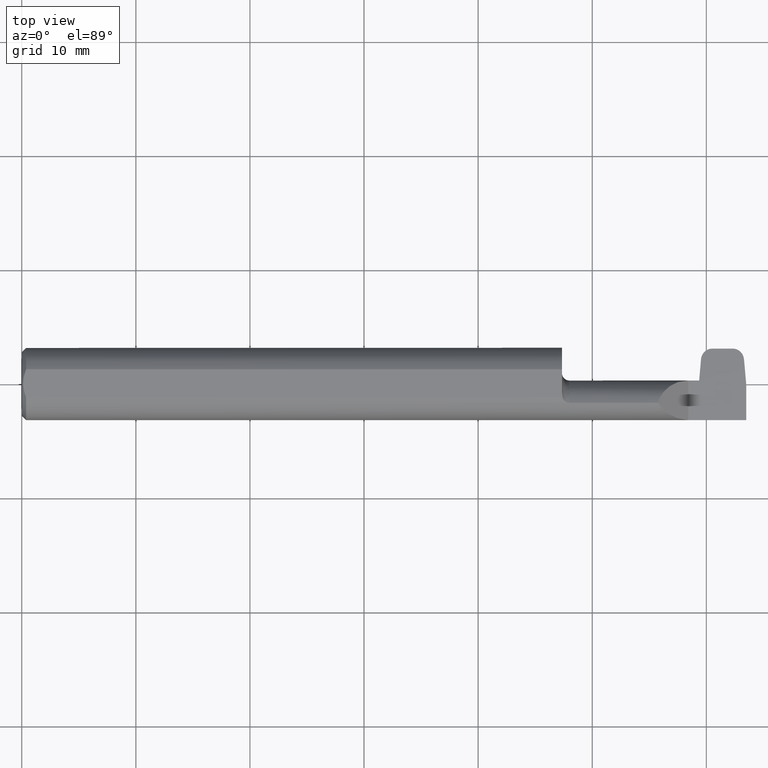
[diagram: clean part render]
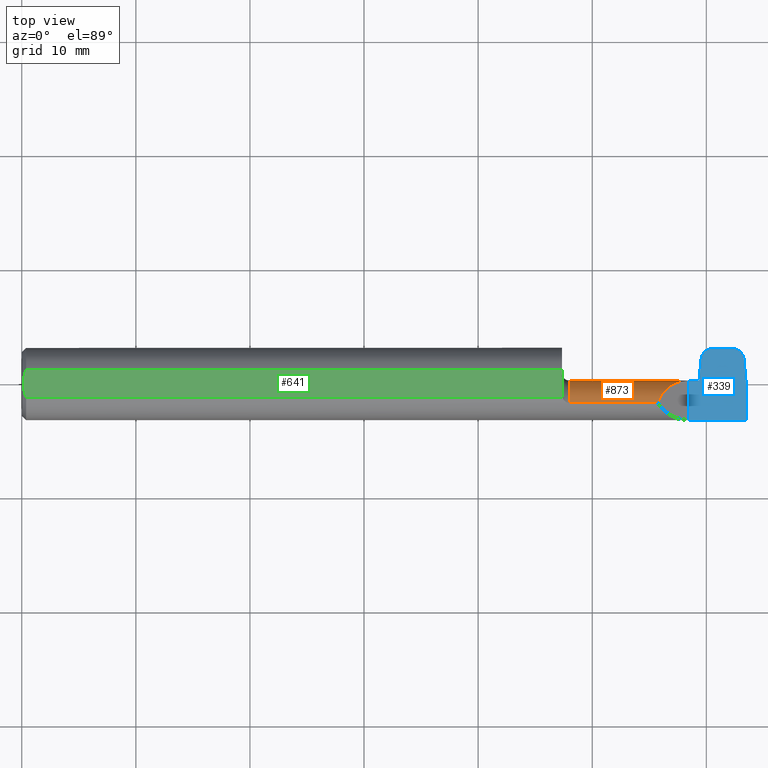
[diagram: same view with three faces highlighted in distinct colors, each labeled with its STEP entity id]
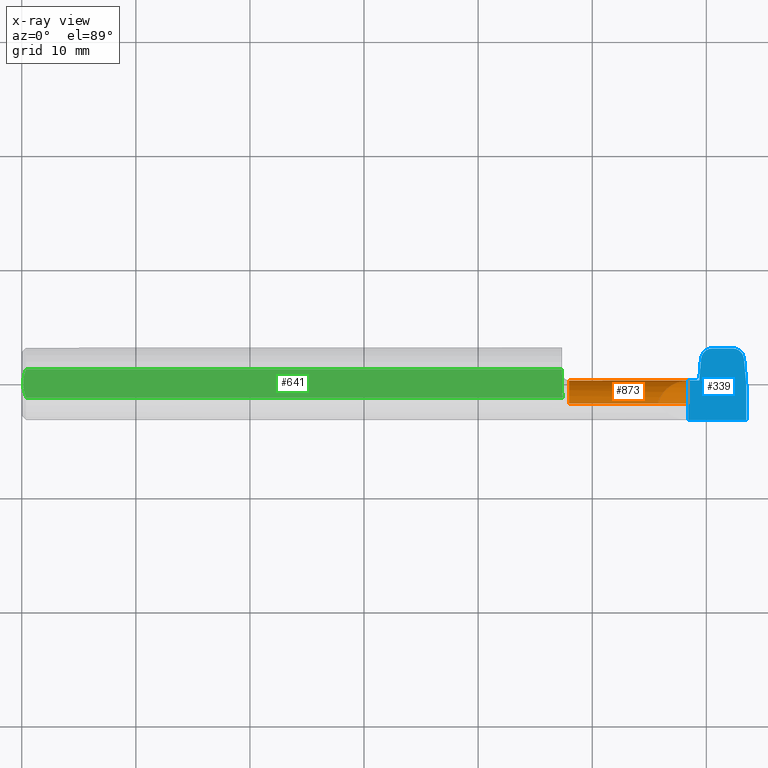
[diagram: x-ray of the same camera — body ghosted, the three highlighted faces saturated]
A machine part, top view with three faces highlighted in distinct colors.
The next image is the same camera in x-ray (body ghosted, the three faces saturated) — at least one of them is partly hidden behind the body in this view.
Their STEP definitions:

[orange] entity #873 — the highlighted cylindrical surface (edge-blend (fillet) strip) has radius 2.794 mm, axis along (-1, -0, -0).
#4 = EDGE_CURVE ( 'NONE', #500, #217, #409, .T. ) ;
#9 = CARTESIAN_POINT ( 'NONE',  ( 2.194839212967228281, -0.06674575881451201564, 0.1055107870327720992 ) ) ;
#11 = DIRECTION ( 'NONE',  ( 0.000000000000000000, 0.000000000000000000, -1.000000000000000000 ) ) ;
#30 = CARTESIAN_POINT ( 'NONE',  ( 2.335337347841493827, 0.01215000000000003751, -0.008981717422824315664 ) ) ;
#44 = EDGE_CURVE ( 'NONE', #577, #161, #95, .T. ) ;
#48 = DIRECTION ( 'NONE',  ( -1.000000000000000000, -0.000000000000000000, -0.000000000000000000 ) ) ;
#82 = VERTEX_POINT ( 'NONE', #239 ) ;
#86 = CARTESIAN_POINT ( 'NONE',  ( 2.300000000000000266, -0.09784999999999999254, 0.000000000000000000 ) ) ;
#93 = CARTESIAN_POINT ( 'NONE',  ( 2.334242751836523411, 0.01105540399502986069, -0.01789648648597845504 ) ) ;
#95 = LINE ( 'NONE', #572, #753 ) ;
#110 = CIRCLE ( 'NONE', #712, 0.1100000000000000422 ) ;
#121 = LINE ( 'NONE', #126, #453 ) ;
#123 = CARTESIAN_POINT ( 'NONE',  ( 2.100500000000000256, -0.06674575881451197401, 0.1055107870327721270 ) ) ;
#126 = CARTESIAN_POINT ( 'NONE',  ( 2.100500000000000256, -0.06674575881451197401, -0.1055107870327721270 ) ) ;
#127 = LINE ( 'NONE', #123, #554 ) ;
#128 = EDGE_CURVE ( 'NONE', #236, #165, #365, .T. ) ;
#152 = EDGE_CURVE ( 'NONE', #217, #82, #127, .T. ) ;
#161 = VERTEX_POINT ( 'NONE', #861 ) ;
#164 = DIRECTION ( 'NONE',  ( -1.000000000000000000, -0.000000000000000000, -0.000000000000000000 ) ) ;
#165 = VERTEX_POINT ( 'NONE', #336 ) ;
#174 = VECTOR ( 'NONE', #385, 39.37007874015748143 ) ;
#190 = ORIENTED_EDGE ( 'NONE', *, *, #4, .T. ) ;
#200 = ORIENTED_EDGE ( 'NONE', *, *, #386, .F. ) ;
#209 = CARTESIAN_POINT ( 'NONE',  ( 2.249507022518907995, 0.01198878289334361948, 0.05084297748109223303 ) ) ;
#212 = CARTESIAN_POINT ( 'NONE',  ( 1.889000000000000012, -0.09784999999999999254, 0.000000000000000000 ) ) ;
#217 = VERTEX_POINT ( 'NONE', #790 ) ;
#236 = VERTEX_POINT ( 'NONE', #506 ) ;
#239 = CARTESIAN_POINT ( 'NONE',  ( 2.194839212967228281, -0.06674575881451201564, 0.1055107870327720992 ) ) ;
#257 = CARTESIAN_POINT ( 'NONE',  ( 2.333172693961768740, 0.008882529890359628158, -0.02661140851596358395 ) ) ;
#266 = CYLINDRICAL_SURFACE ( 'NONE', #713, 0.1100000000000000283 ) ;
#270 = DIRECTION ( 'NONE',  ( -1.000000000000000000, -0.000000000000000000, -0.000000000000000000 ) ) ;
#289 = EDGE_CURVE ( 'NONE', #522, #82, #492, .T. ) ;
#313 = EDGE_CURVE ( 'NONE', #366, #577, #110, .T. ) ;
#314 = DIRECTION ( 'NONE',  ( 1.000000000000000000, -0.000000000000000000, -0.000000000000000000 ) ) ;
#320 = DIRECTION ( 'NONE',  ( 0.000000000000000000, 0.000000000000000000, 1.000000000000000000 ) ) ;
#321 = ORIENTED_EDGE ( 'NONE', *, *, #44, .F. ) ;
#336 = CARTESIAN_POINT ( 'NONE',  ( 2.336440164071409420, 0.01215000000000004965, 0.000000000000000000 ) ) ;
#343 = CARTESIAN_POINT ( 'NONE',  ( 1.864000000000000101, -0.09784999999999999254, 0.000000000000000000 ) ) ;
#365 = LINE ( 'NONE', #370, #626 ) ;
#366 = VERTEX_POINT ( 'NONE', #795 ) ;
#370 = CARTESIAN_POINT ( 'NONE',  ( 1.864000000000000101, 0.01215000000000003230, -2.465075339897404302E-17 ) ) ;
#385 = DIRECTION ( 'NONE',  ( -1.000000000000000000, -0.000000000000000000, -0.000000000000000000 ) ) ;
#386 = EDGE_CURVE ( 'NONE', #161, #415, #530, .T. ) ;
#409 = CIRCLE ( 'NONE', #669, 0.1100000000000000283 ) ;
#410 = ORIENTED_EDGE ( 'NONE', *, *, #735, .T. ) ;
#415 = VERTEX_POINT ( 'NONE', #257 ) ;
#445 = CARTESIAN_POINT ( 'NONE',  ( 2.349311322083690090, -0.09784999999999999254, 0.000000000000000000 ) ) ;
#448 = DIRECTION ( 'NONE',  ( 1.000000000000000000, 0.000000000000000000, 0.000000000000000000 ) ) ;
#449 = CARTESIAN_POINT ( 'NONE',  ( 1.864000000000000101, 0.008882529890359655914, -0.02661140851596339313 ) ) ;
#453 = VECTOR ( 'NONE', #48, 39.37007874015748143 ) ;
#463 = ORIENTED_EDGE ( 'NONE', *, *, #289, .F. ) ;
#472 = DIRECTION ( 'NONE',  ( 0.000000000000000000, 0.000000000000000000, 1.000000000000000000 ) ) ;
#478 = CARTESIAN_POINT ( 'NONE',  ( 2.209116973875248302, -0.01831320643403844955, 0.09123302612475124584 ) ) ;
#480 = CARTESIAN_POINT ( 'NONE',  ( 1.889000000000000012, -0.06674575881451197401, -0.1055107870327721270 ) ) ;
#492 =( BOUNDED_CURVE ( )  B_SPLINE_CURVE ( 3, ( #819, #209, #478, #9 ),
 .UNSPECIFIED., .F., .T. ) 
 B_SPLINE_CURVE_WITH_KNOTS ( ( 4, 4 ),
 ( 4.715570803935303701, 5.996508910626888067 ),
 .UNSPECIFIED. ) 
 CURVE ( )  GEOMETRIC_REPRESENTATION_ITEM ( )  RATIONAL_B_SPLINE_CURVE ( ( 1.000000000000000000, 0.8678770354264943032, 0.8678770354264943032, 1.000000000000000000 ) ) 
 REPRESENTATION_ITEM ( '' )  );
#498 = CARTESIAN_POINT ( 'NONE',  ( 2.336440164071409420, 0.01215000000000004965, 0.000000000000000000 ) ) ;
#500 = VERTEX_POINT ( 'NONE', #480 ) ;
#506 = CARTESIAN_POINT ( 'NONE',  ( 2.300000000000000266, 0.01215000000000003230, -2.465075339897404302E-17 ) ) ;
#508 = ORIENTED_EDGE ( 'NONE', *, *, #152, .T. ) ;
#522 = VERTEX_POINT ( 'NONE', #551 ) ;
#523 =( BOUNDED_CURVE ( )  B_SPLINE_CURVE ( 3, ( #695, #93, #30, #498 ),
 .UNSPECIFIED., .F., .T. ) 
 B_SPLINE_CURVE_WITH_KNOTS ( ( 4, 4 ),
 ( 1.326450231515704070, 1.570796326794911879 ),
 .UNSPECIFIED. ) 
 CURVE ( )  GEOMETRIC_REPRESENTATION_ITEM ( )  RATIONAL_B_SPLINE_CURVE ( ( 1.000000000000000000, 0.9950307677608813961, 0.9950307677608813961, 1.000000000000000000 ) ) 
 REPRESENTATION_ITEM ( '' )  );
#530 = LINE ( 'NONE', #449, #174 ) ;
#550 = EDGE_CURVE ( 'NONE', #522, #236, #845, .T. ) ;
#551 = CARTESIAN_POINT ( 'NONE',  ( 2.300000000000000266, 0.01214944318040891459, 0.0003500000000001822508 ) ) ;
#554 = VECTOR ( 'NONE', #448, 39.37007874015748143 ) ;
#572 = CARTESIAN_POINT ( 'NONE',  ( 2.349311322083690090, 0.008882529890359631627, -0.02661140851596358395 ) ) ;
#577 = VERTEX_POINT ( 'NONE', #745 ) ;
#618 = DIRECTION ( 'NONE',  ( 1.000000000000000000, 0.000000000000000000, 0.000000000000000000 ) ) ;
#623 = ORIENTED_EDGE ( 'NONE', *, *, #550, .T. ) ;
#626 = VECTOR ( 'NONE', #643, 39.37007874015748143 ) ;
#643 = DIRECTION ( 'NONE',  ( 1.000000000000000000, 0.000000000000000000, 0.000000000000000000 ) ) ;
#668 = FACE_OUTER_BOUND ( 'NONE', #825, .T. ) ;
#669 = AXIS2_PLACEMENT_3D ( 'NONE', #212, #618, #11 ) ;
#677 = DIRECTION ( 'NONE',  ( 0.000000000000000000, 0.000000000000000000, 1.000000000000000000 ) ) ;
#685 = EDGE_CURVE ( 'NONE', #415, #165, #523, .T. ) ;
#695 = CARTESIAN_POINT ( 'NONE',  ( 2.333172693961768740, 0.008882529890359628158, -0.02661140851596358395 ) ) ;
#712 = AXIS2_PLACEMENT_3D ( 'NONE', #445, #314, #320 ) ;
#713 = AXIS2_PLACEMENT_3D ( 'NONE', #343, #270, #677 ) ;
#717 = ORIENTED_EDGE ( 'NONE', *, *, #128, .T. ) ;
#735 = EDGE_CURVE ( 'NONE', #366, #500, #121, .T. ) ;
#742 = ORIENTED_EDGE ( 'NONE', *, *, #313, .F. ) ;
#745 = CARTESIAN_POINT ( 'NONE',  ( 2.349311322083690090, 0.008882529890359631627, -0.02661140851596358395 ) ) ;
#749 = DIRECTION ( 'NONE',  ( -1.000000000000000000, -0.000000000000000000, -0.000000000000000000 ) ) ;
#753 = VECTOR ( 'NONE', #164, 39.37007874015748143 ) ;
#755 = AXIS2_PLACEMENT_3D ( 'NONE', #86, #749, #472 ) ;
#790 = CARTESIAN_POINT ( 'NONE',  ( 1.889000000000000012, -0.06674575881451197401, 0.1055107870327721270 ) ) ;
#795 = CARTESIAN_POINT ( 'NONE',  ( 2.349311322083690090, -0.06674575881451196013, -0.1055107870327721409 ) ) ;
#817 = ORIENTED_EDGE ( 'NONE', *, *, #685, .F. ) ;
#819 = CARTESIAN_POINT ( 'NONE',  ( 2.300000000000000266, 0.01214944318040891459, 0.0003500000000001822508 ) ) ;
#825 = EDGE_LOOP ( 'NONE', ( #200, #321, #742, #410, #190, #508, #463, #623, #717, #817 ) ) ;
#845 = CIRCLE ( 'NONE', #755, 0.1100000000000000283 ) ;
#861 = CARTESIAN_POINT ( 'NONE',  ( 2.340434248793042737, 0.008882529890359631627, -0.02661140851596358395 ) ) ;
#873 = ADVANCED_FACE ( 'NONE', ( #668 ), #266, .T. ) ;

[blue] entity #339 — the highlighted planar face has unit normal (-0, 0, -1).
#16 =( BOUNDED_CURVE ( )  B_SPLINE_CURVE ( 3, ( #278, #763, #698, #836 ),
 .UNSPECIFIED., .F., .F. ) 
 B_SPLINE_CURVE_WITH_KNOTS ( ( 4, 4 ),
 ( 1.960722919233723216, 3.411297973623238722 ),
 .UNSPECIFIED. ) 
 CURVE ( )  GEOMETRIC_REPRESENTATION_ITEM ( )  RATIONAL_B_SPLINE_CURVE ( ( 1.000000000000000000, 0.8322058143701926980, 0.8322058143701926980, 1.000000000000000000 ) ) 
 REPRESENTATION_ITEM ( '' )  );
#58 = DIRECTION ( 'NONE',  ( 1.000000000000000000, 0.000000000000000000, 0.000000000000000000 ) ) ;
#63 = CARTESIAN_POINT ( 'NONE',  ( 2.300000000000000266, 0.1250000000000000000, -2.465075339897404302E-17 ) ) ;
#69 = LINE ( 'NONE', #156, #94 ) ;
#72 = CARTESIAN_POINT ( 'NONE',  ( 2.300000000000000266, -0.1248500000000000026, -2.465075339897404302E-17 ) ) ;
#88 = EDGE_CURVE ( 'NONE', #202, #813, #761, .T. ) ;
#94 = VECTOR ( 'NONE', #532, 39.37007874015748143 ) ;
#128 = EDGE_CURVE ( 'NONE', #236, #165, #365, .T. ) ;
#129 = LINE ( 'NONE', #590, #299 ) ;
#135 = ORIENTED_EDGE ( 'NONE', *, *, #561, .T. ) ;
#156 = CARTESIAN_POINT ( 'NONE',  ( 2.500000000000000000, 0.1250000000000000000, -2.465075339897404302E-17 ) ) ;
#165 = VERTEX_POINT ( 'NONE', #336 ) ;
#170 = EDGE_CURVE ( 'NONE', #165, #504, #319, .T. ) ;
#184 = CARTESIAN_POINT ( 'NONE',  ( 2.300000000000000266, 0.1250000000000000000, -2.465075339897404302E-17 ) ) ;
#189 = DIRECTION ( 'NONE',  ( -1.000000000000000000, 0.000000000000000000, 0.000000000000000000 ) ) ;
#191 = VECTOR ( 'NONE', #58, 39.37007874015748143 ) ;
#202 = VERTEX_POINT ( 'NONE', #784 ) ;
#215 = EDGE_CURVE ( 'NONE', #504, #549, #515, .T. ) ;
#216 = LINE ( 'NONE', #407, #497 ) ;
#236 = VERTEX_POINT ( 'NONE', #506 ) ;
#248 = CARTESIAN_POINT ( 'NONE',  ( 2.500000000000000000, -0.1248500000000000026, -2.465075339897404302E-17 ) ) ;
#276 = VERTEX_POINT ( 'NONE', #459 ) ;
#278 = CARTESIAN_POINT ( 'NONE',  ( 2.492302251767204435, 0.08513566491434629291, 0.000000000000000000 ) ) ;
#285 = VECTOR ( 'NONE', #558, 39.37007874015748143 ) ;
#292 = CARTESIAN_POINT ( 'NONE',  ( 2.345766828185320119, 0.1073242063295297422, -1.707404996040164512E-17 ) ) ;
#298 = EDGE_CURVE ( 'NONE', #662, #202, #16, .T. ) ;
#299 = VECTOR ( 'NONE', #461, 39.37007874015748143 ) ;
#319 = LINE ( 'NONE', #725, #191 ) ;
#326 = EDGE_CURVE ( 'NONE', #738, #533, #129, .T. ) ;
#327 = DIRECTION ( 'NONE',  ( -0.000000000000000000, 1.000000000000000000, -0.000000000000000000 ) ) ;
#336 = CARTESIAN_POINT ( 'NONE',  ( 2.336440164071409420, 0.01215000000000004965, 0.000000000000000000 ) ) ;
#339 = ADVANCED_FACE ( 'NONE', ( #516 ), #585, .F. ) ;
#365 = LINE ( 'NONE', #370, #626 ) ;
#370 = CARTESIAN_POINT ( 'NONE',  ( 1.864000000000000101, 0.01215000000000003230, -2.465075339897404302E-17 ) ) ;
#387 = ORIENTED_EDGE ( 'NONE', *, *, #88, .T. ) ;
#407 = CARTESIAN_POINT ( 'NONE',  ( 2.489063917059260334, 0.1221499999999998004, 0.000000000000000000 ) ) ;
#417 = CARTESIAN_POINT ( 'NONE',  ( 2.382666486481432422, 0.1221499999999997865, -2.465075339897404302E-17 ) ) ;
#423 =( BOUNDED_CURVE ( )  B_SPLINE_CURVE ( 3, ( #417, #633, #292, #837 ),
 .UNSPECIFIED., .F., .T. ) 
 B_SPLINE_CURVE_WITH_KNOTS ( ( 4, 4 ),
 ( 6.013479987146147288, 7.464055041535657686 ),
 .UNSPECIFIED. ) 
 CURVE ( )  GEOMETRIC_REPRESENTATION_ITEM ( )  RATIONAL_B_SPLINE_CURVE ( ( 1.000000000000000000, 0.8322058143701936972, 0.8322058143701936972, 1.000000000000000000 ) ) 
 REPRESENTATION_ITEM ( '' )  );
#430 = CARTESIAN_POINT ( 'NONE',  ( 2.492302251767204435, 0.08513566491434629291, 0.000000000000000000 ) ) ;
#431 = EDGE_CURVE ( 'NONE', #533, #236, #665, .T. ) ;
#436 = ORIENTED_EDGE ( 'NONE', *, *, #496, .F. ) ;
#459 = CARTESIAN_POINT ( 'NONE',  ( 2.500000000000000000, -0.002850000000000199596, 0.000000000000000000 ) ) ;
#461 = DIRECTION ( 'NONE',  ( -1.000000000000000000, -0.000000000000000000, -0.000000000000000000 ) ) ;
#467 = VECTOR ( 'NONE', #327, 39.37007874015748143 ) ;
#473 = ORIENTED_EDGE ( 'NONE', *, *, #215, .F. ) ;
#476 = ORIENTED_EDGE ( 'NONE', *, *, #170, .F. ) ;
#496 = EDGE_CURVE ( 'NONE', #662, #276, #216, .T. ) ;
#497 = VECTOR ( 'NONE', #824, 39.37007874015748143 ) ;
#504 = VERTEX_POINT ( 'NONE', #622 ) ;
#506 = CARTESIAN_POINT ( 'NONE',  ( 2.300000000000000266, 0.01215000000000003230, -2.465075339897404302E-17 ) ) ;
#515 = LINE ( 'NONE', #648, #598 ) ;
#516 = FACE_OUTER_BOUND ( 'NONE', #536, .T. ) ;
#517 = ORIENTED_EDGE ( 'NONE', *, *, #619, .T. ) ;
#532 = DIRECTION ( 'NONE',  ( -0.000000000000000000, 1.000000000000000000, -0.000000000000000000 ) ) ;
#533 = VERTEX_POINT ( 'NONE', #72 ) ;
#536 = EDGE_LOOP ( 'NONE', ( #387, #517, #473, #476, #696, #600, #879, #135, #436, #627 ) ) ;
#549 = VERTEX_POINT ( 'NONE', #683 ) ;
#558 = DIRECTION ( 'NONE',  ( -1.000000000000000000, 8.303569413842311969E-16, 0.000000000000000000 ) ) ;
#561 = EDGE_CURVE ( 'NONE', #738, #276, #69, .T. ) ;
#585 = PLANE ( 'NONE',  #771 ) ;
#590 = CARTESIAN_POINT ( 'NONE',  ( 2.500000000000000000, -0.1248500000000000026, -2.465075339897404302E-17 ) ) ;
#598 = VECTOR ( 'NONE', #868, 39.37007874015748854 ) ;
#600 = ORIENTED_EDGE ( 'NONE', *, *, #431, .F. ) ;
#619 = EDGE_CURVE ( 'NONE', #813, #549, #423, .T. ) ;
#622 = CARTESIAN_POINT ( 'NONE',  ( 2.337440164071409310, 0.01215000000000004965, 0.000000000000000000 ) ) ;
#626 = VECTOR ( 'NONE', #643, 39.37007874015748143 ) ;
#627 = ORIENTED_EDGE ( 'NONE', *, *, #298, .T. ) ;
#633 = CARTESIAN_POINT ( 'NONE',  ( 2.361324239368718825, 0.1221499999999996061, -1.707404996040164512E-17 ) ) ;
#643 = DIRECTION ( 'NONE',  ( 1.000000000000000000, 0.000000000000000000, 0.000000000000000000 ) ) ;
#648 = CARTESIAN_POINT ( 'NONE',  ( 2.337440164071409310, 0.01215000000000004965, 0.000000000000000000 ) ) ;
#662 = VERTEX_POINT ( 'NONE', #430 ) ;
#665 = LINE ( 'NONE', #63, #467 ) ;
#683 = CARTESIAN_POINT ( 'NONE',  ( 2.343825582351315884, 0.08513566491434633454, 0.000000000000000000 ) ) ;
#696 = ORIENTED_EDGE ( 'NONE', *, *, #128, .F. ) ;
#698 = CARTESIAN_POINT ( 'NONE',  ( 2.474803594749801938, 0.1221499999999996616, -1.707404996040164203E-17 ) ) ;
#725 = CARTESIAN_POINT ( 'NONE',  ( 2.336440164071409420, 0.01215000000000004965, 0.000000000000000000 ) ) ;
#737 = DIRECTION ( 'NONE',  ( -0.000000000000000000, 0.000000000000000000, -1.000000000000000000 ) ) ;
#738 = VERTEX_POINT ( 'NONE', #248 ) ;
#761 = LINE ( 'NONE', #848, #285 ) ;
#763 = CARTESIAN_POINT ( 'NONE',  ( 2.490361005933200200, 0.1073242063295298254, -1.707404996040164203E-17 ) ) ;
#771 = AXIS2_PLACEMENT_3D ( 'NONE', #184, #737, #189 ) ;
#784 = CARTESIAN_POINT ( 'NONE',  ( 2.453461347637087897, 0.1221499999999997310, -2.465075339897404302E-17 ) ) ;
#799 = CARTESIAN_POINT ( 'NONE',  ( 2.382666486481432422, 0.1221499999999997865, -2.465075339897404302E-17 ) ) ;
#813 = VERTEX_POINT ( 'NONE', #799 ) ;
#824 = DIRECTION ( 'NONE',  ( 0.08715574274765255924, -0.9961946980917459893, 0.000000000000000000 ) ) ;
#836 = CARTESIAN_POINT ( 'NONE',  ( 2.453461347637087897, 0.1221499999999997310, -2.465075339897404302E-17 ) ) ;
#837 = CARTESIAN_POINT ( 'NONE',  ( 2.343825582351315884, 0.08513566491434633454, 0.000000000000000000 ) ) ;
#848 = CARTESIAN_POINT ( 'NONE',  ( 2.300000000000000266, 0.1221499999999998559, -2.465075339897404302E-17 ) ) ;
#868 = DIRECTION ( 'NONE',  ( 0.08715574274765251761, 0.9961946980917459893, 0.000000000000000000 ) ) ;
#879 = ORIENTED_EDGE ( 'NONE', *, *, #326, .F. ) ;

[green] entity #641 — the highlighted planar face has unit normal (-0, 0, -1).
#2 = EDGE_CURVE ( 'NONE', #185, #756, #686, .T. ) ;
#8 = VERTEX_POINT ( 'NONE', #281 ) ;
#14 = LINE ( 'NONE', #146, #286 ) ;
#47 = VERTEX_POINT ( 'NONE', #157 ) ;
#53 = CARTESIAN_POINT ( 'NONE',  ( 0.004999999999933147331, 5.639788019834102201E-15, 0.1148500000000000076 ) ) ;
#56 = VERTEX_POINT ( 'NONE', #352 ) ;
#67 = VECTOR ( 'NONE', #699, 39.37007874015748143 ) ;
#104 = CARTESIAN_POINT ( 'NONE',  ( 0.004999999999999684384, 0.008366382319371040363, 0.1148500000000000076 ) ) ;
#108 = CARTESIAN_POINT ( 'NONE',  ( 0.000000000000000000, 0.1000000000000000056, 0.1148500000000000076 ) ) ;
#109 = CARTESIAN_POINT ( 'NONE',  ( 0.004999999999933147331, 5.639788019834102201E-15, 0.1148500000000000076 ) ) ;
#122 = EDGE_CURVE ( 'NONE', #185, #8, #716, .T. ) ;
#130 = B_SPLINE_CURVE_WITH_KNOTS ( 'NONE', 3,
 ( #53, #519, #379, #731, #525, #789 ),
 .UNSPECIFIED., .F., .F.,
 ( 4, 2, 4 ),
 ( 0.004071982807388159833, 0.004705731387952724089, 0.005339479968517289211 ),
 .UNSPECIFIED. ) ;
#132 = CARTESIAN_POINT ( 'NONE',  ( 1.864000000000000101, -0.03432117512376132301, 0.1148500000000000076 ) ) ;
#146 = CARTESIAN_POINT ( 'NONE',  ( 2.500000000000000000, -0.04895916665957456698, 0.1148500000000000076 ) ) ;
#153 = EDGE_LOOP ( 'NONE', ( #405, #331, #433, #491, #206, #265 ) ) ;
#157 = CARTESIAN_POINT ( 'NONE',  ( 0.01499999999999914770, -0.04895916665957456698, 0.1148500000000000076 ) ) ;
#166 = CARTESIAN_POINT ( 'NONE',  ( 0.01192863036854219932, 0.04112691532340072287, 0.1148500000000000215 ) ) ;
#185 = VERTEX_POINT ( 'NONE', #802 ) ;
#206 = ORIENTED_EDGE ( 'NONE', *, *, #452, .F. ) ;
#265 = ORIENTED_EDGE ( 'NONE', *, *, #776, .T. ) ;
#274 = CARTESIAN_POINT ( 'NONE',  ( 1.864000000000000101, -0.02689594796630704471, 0.1148500000000000076 ) ) ;
#281 = CARTESIAN_POINT ( 'NONE',  ( 0.004999999999933147331, 5.639788019834102201E-15, 0.1148500000000000076 ) ) ;
#286 = VECTOR ( 'NONE', #404, 39.37007874015748143 ) ;
#331 = ORIENTED_EDGE ( 'NONE', *, *, #2, .F. ) ;
#352 = CARTESIAN_POINT ( 'NONE',  ( 1.866165089549962186, -0.04895916665957456698, 0.1148500000000000076 ) ) ;
#367 = AXIS2_PLACEMENT_3D ( 'NONE', #108, #434, #847 ) ;
#379 = CARTESIAN_POINT ( 'NONE',  ( 0.005933586687556474670, -0.01676171734555376158, 0.1148500000000000215 ) ) ;
#388 = CARTESIAN_POINT ( 'NONE',  ( 1.864000000000000101, -0.02689594796630704471, 0.1148500000000000076 ) ) ;
#404 = DIRECTION ( 'NONE',  ( -1.000000000000000000, -0.000000000000000000, -0.000000000000000000 ) ) ;
#405 = ORIENTED_EDGE ( 'NONE', *, *, #656, .F. ) ;
#432 = CARTESIAN_POINT ( 'NONE',  ( 0.009419795109434097105, 0.03314228182474765472, 0.1148499999999999938 ) ) ;
#433 = ORIENTED_EDGE ( 'NONE', *, *, #122, .T. ) ;
#434 = DIRECTION ( 'NONE',  ( -0.000000000000000000, 0.000000000000000000, -1.000000000000000000 ) ) ;
#452 = EDGE_CURVE ( 'NONE', #56, #47, #14, .T. ) ;
#491 = ORIENTED_EDGE ( 'NONE', *, *, #807, .T. ) ;
#493 = CARTESIAN_POINT ( 'NONE',  ( 1.864000000000000101, 0.1000000000000000056, 0.1148500000000000076 ) ) ;
#495 = VERTEX_POINT ( 'NONE', #274 ) ;
#519 = CARTESIAN_POINT ( 'NONE',  ( 0.004999999999998236758, -0.008410179126392275384, 0.1148500000000000215 ) ) ;
#525 = CARTESIAN_POINT ( 'NONE',  ( 0.01198609678885614524, -0.04127345953699167180, 0.1148499999999999938 ) ) ;
#543 = CARTESIAN_POINT ( 'NONE',  ( 2.500000000000000000, 0.04895916665957456698, 0.1148500000000000076 ) ) ;
#557 = PLANE ( 'NONE',  #367 ) ;
#578 = CARTESIAN_POINT ( 'NONE',  ( 1.866165089549962186, -0.04895916665957456698, 0.1148500000000000076 ) ) ;
#593 = CARTESIAN_POINT ( 'NONE',  ( 1.864000000000000101, 0.04895916665957456698, 0.1148500000000000076 ) ) ;
#640 = VECTOR ( 'NONE', #822, 39.37007874015748143 ) ;
#641 = ADVANCED_FACE ( 'NONE', ( #691 ), #557, .F. ) ;
#656 = EDGE_CURVE ( 'NONE', #756, #495, #764, .T. ) ;
#686 = LINE ( 'NONE', #543, #640 ) ;
#691 = FACE_OUTER_BOUND ( 'NONE', #153, .T. ) ;
#699 = DIRECTION ( 'NONE',  ( 0.000000000000000000, -1.000000000000000000, 0.000000000000000000 ) ) ;
#703 = CARTESIAN_POINT ( 'NONE',  ( 0.005949639560152591468, 0.01681318950603462661, 0.1148500000000000076 ) ) ;
#714 = CARTESIAN_POINT ( 'NONE',  ( 1.864890775228045472, -0.04165898946242331535, 0.1148500000000000076 ) ) ;
#716 = B_SPLINE_CURVE_WITH_KNOTS ( 'NONE', 3,
 ( #773, #166, #432, #703, #104, #109 ),
 .UNSPECIFIED., .F., .F.,
 ( 4, 2, 4 ),
 ( 0.002811086258179029771, 0.003441534532783594585, 0.004071982807388159833 ),
 .UNSPECIFIED. ) ;
#731 = CARTESIAN_POINT ( 'NONE',  ( 0.009468318732755824640, -0.03334632524505316137, 0.1148499999999999660 ) ) ;
#756 = VERTEX_POINT ( 'NONE', #593 ) ;
#764 = LINE ( 'NONE', #493, #67 ) ;
#773 = CARTESIAN_POINT ( 'NONE',  ( 0.01499999999999915637, 0.04895916665957456698, 0.1148500000000000076 ) ) ;
#776 = EDGE_CURVE ( 'NONE', #56, #495, #814, .T. ) ;
#789 = CARTESIAN_POINT ( 'NONE',  ( 0.01499999999999914770, -0.04895916665957456698, 0.1148500000000000076 ) ) ;
#802 = CARTESIAN_POINT ( 'NONE',  ( 0.01499999999999915637, 0.04895916665957456698, 0.1148500000000000076 ) ) ;
#807 = EDGE_CURVE ( 'NONE', #8, #47, #130, .T. ) ;
#814 = B_SPLINE_CURVE_WITH_KNOTS ( 'NONE', 3,
 ( #578, #714, #132, #388 ),
 .UNSPECIFIED., .F., .F.,
 ( 4, 4 ),
 ( 2.168404344971008868E-19, 0.0005630975672748592814 ),
 .UNSPECIFIED. ) ;
#822 = DIRECTION ( 'NONE',  ( 1.000000000000000000, 0.000000000000000000, 0.000000000000000000 ) ) ;
#847 = DIRECTION ( 'NONE',  ( -1.000000000000000000, 0.000000000000000000, 0.000000000000000000 ) ) ;